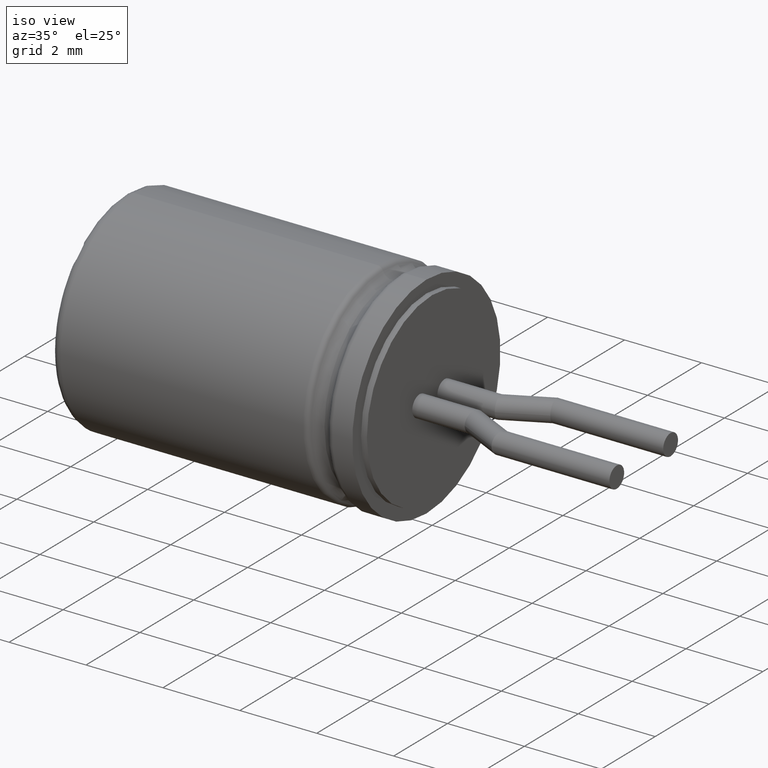
[diagram: clean part render]
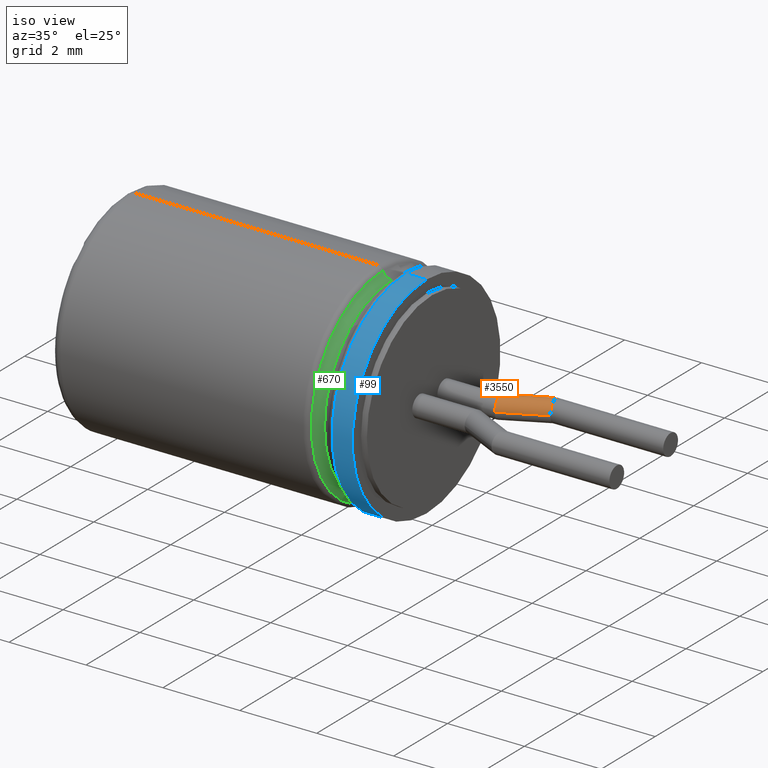
[diagram: same view with three faces highlighted in distinct colors, each labeled with its STEP entity id]
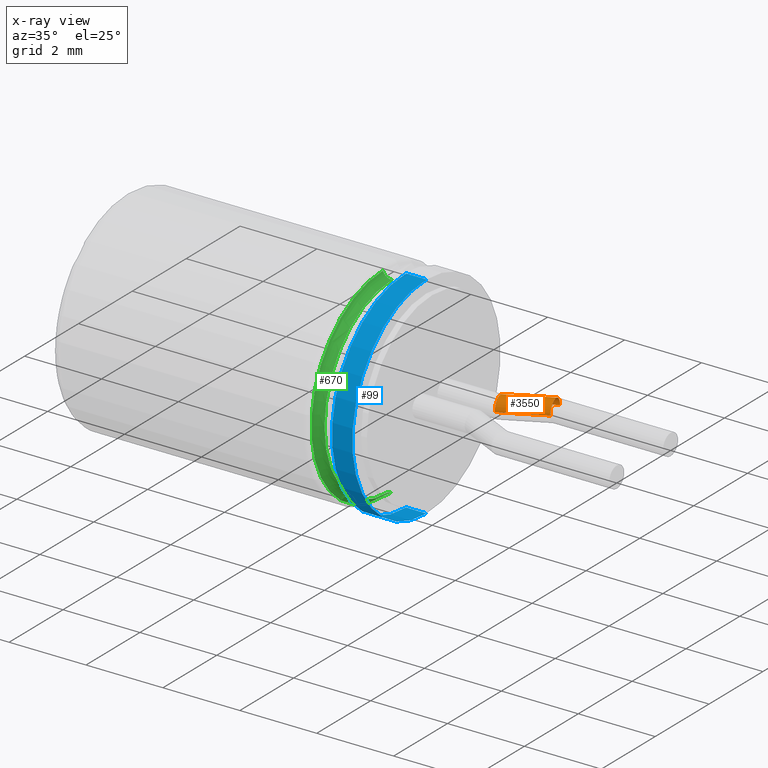
[diagram: x-ray of the same camera — body ghosted, the three highlighted faces saturated]
A machine part, iso view with three faces highlighted in distinct colors.
The next image is the same camera in x-ray (body ghosted, the three faces saturated) — at least one of them is partly hidden behind the body in this view.
Their STEP definitions:

[orange] entity #3550 — the highlighted cylindrical surface (edge-blend (fillet) strip) has radius 0.275 mm, axis along (0.8946, 0.4469, 0).
#248 = CARTESIAN_POINT ( 'NONE',  ( 9.494875275735925200, 0.1903999999999999600, 0.1610912703473989000 ) ) ;
#305 = CARTESIAN_POINT ( 'NONE',  ( 10.50000000000000000, 1.000000000000000000, 0.2750000000000000200 ) ) ;
#306 = CARTESIAN_POINT ( 'NONE',  ( 9.365124724264076100, 0.7404000000000000600, 0.0000000000000000000 ) ) ;
#520 = EDGE_CURVE ( 'NONE', #927, #2744, #4044, .T. ) ;
#561 = VECTOR ( 'NONE', #1484, 1000.000000000000000 ) ;
#601 = CARTESIAN_POINT ( 'NONE',  ( 10.56487527573592500, 0.7249999999999998700, 0.1610912703473988100 ) ) ;
#620 = CARTESIAN_POINT ( 'NONE',  ( 10.46199694333658800, 1.161091270347399000, 0.2750000000000000800 ) ) ;
#847 = CARTESIAN_POINT ( 'NONE',  ( 10.43512472426407600, 1.275000000000000400, 0.0000000000000000000 ) ) ;
#927 = VERTEX_POINT ( 'NONE', #2673 ) ;
#1028 =( BOUNDED_CURVE ( )  B_SPLINE_CURVE ( 3, ( #1531, #601, #2759, #1822 ),
 .UNSPECIFIED., .F., .F. ) 
 B_SPLINE_CURVE_WITH_KNOTS ( ( 4, 4 ),
 ( 3.141592653589793100, 4.712388980384689700 ),
 .UNSPECIFIED. ) 
 CURVE ( )  GEOMETRIC_REPRESENTATION_ITEM ( )  RATIONAL_B_SPLINE_CURVE ( ( 1.000000000000000000, 0.8047378541243649400, 0.8047378541243649400, 1.000000000000000000 ) ) 
 REPRESENTATION_ITEM ( '' )  );
#1054 = VERTEX_POINT ( 'NONE', #306 ) ;
#1096 = EDGE_CURVE ( 'NONE', #1054, #927, #3835, .T. ) ;
#1120 = DIRECTION ( 'NONE',  ( -0.4469460432576659000, 0.8945609171075587000, 0.0000000000000000000 ) ) ;
#1246 = EDGE_CURVE ( 'NONE', #1641, #3207, #1028, .T. ) ;
#1443 = CARTESIAN_POINT ( 'NONE',  ( 9.365124724264076100, 0.7404000000000000600, 0.0000000000000000000 ) ) ;
#1484 = DIRECTION ( 'NONE',  ( 0.8945609171075592500, 0.4469460432576649000, 0.0000000000000000000 ) ) ;
#1485 = CARTESIAN_POINT ( 'NONE',  ( 9.365124724264076100, 0.7403999999999999500, 0.1610912703473988100 ) ) ;
#1531 = CARTESIAN_POINT ( 'NONE',  ( 10.56487527573592500, 0.7249999999999998700, 3.367778697655221300E-017 ) ) ;
#1641 = VERTEX_POINT ( 'NONE', #1698 ) ;
#1650 = LINE ( 'NONE', #3045, #561 ) ;
#1698 = CARTESIAN_POINT ( 'NONE',  ( 10.56487527573592500, 0.7249999999999998700, 3.367778697655221300E-017 ) ) ;
#1740 = ORIENTED_EDGE ( 'NONE', *, *, #1969, .T. ) ;
#1763 = VECTOR ( 'NONE', #2826, 1000.000000000000000 ) ;
#1822 = CARTESIAN_POINT ( 'NONE',  ( 10.50000000000000000, 1.000000000000000000, 0.2750000000000000200 ) ) ;
#1870 = CARTESIAN_POINT ( 'NONE',  ( 9.552910161895859200, 0.2193957477954211200, 3.367778697655221300E-017 ) ) ;
#1874 = CARTESIAN_POINT ( 'NONE',  ( 9.430000000000001500, 0.4653999999999999200, 0.2750000000000000200 ) ) ;
#1969 = EDGE_CURVE ( 'NONE', #2744, #1641, #2750, .T. ) ;
#1979 = ORIENTED_EDGE ( 'NONE', *, *, #1246, .T. ) ;
#1987 = EDGE_LOOP ( 'NONE', ( #2920, #2569, #1740, #1979, #3666, #3060 ) ) ;
#2054 = CARTESIAN_POINT ( 'NONE',  ( 9.430000000000001500, 0.4653999999999999200, 0.2750000000000000200 ) ) ;
#2189 = CARTESIAN_POINT ( 'NONE',  ( 9.468003056663411200, 0.3043087296526010300, 0.2750000000000000200 ) ) ;
#2380 = VERTEX_POINT ( 'NONE', #847 ) ;
#2460 = CARTESIAN_POINT ( 'NONE',  ( 9.494875275735925200, 0.1903999999999997400, 3.367778697655221300E-017 ) ) ;
#2569 = ORIENTED_EDGE ( 'NONE', *, *, #520, .T. ) ;
#2597 = CARTESIAN_POINT ( 'NONE',  ( 9.430000000000001500, 0.4653999999999999200, 0.0000000000000000000 ) ) ;
#2600 =( BOUNDED_CURVE ( )  B_SPLINE_CURVE ( 3, ( #305, #620, #4078, #4070 ),
 .UNSPECIFIED., .F., .T. ) 
 B_SPLINE_CURVE_WITH_KNOTS ( ( 4, 4 ),
 ( 4.712388980384689700, 6.283185307179586200 ),
 .UNSPECIFIED. ) 
 CURVE ( )  GEOMETRIC_REPRESENTATION_ITEM ( )  RATIONAL_B_SPLINE_CURVE ( ( 1.000000000000000000, 0.8047378541243649400, 0.8047378541243649400, 1.000000000000000000 ) ) 
 REPRESENTATION_ITEM ( '' )  );
#2646 = EDGE_CURVE ( 'NONE', #1054, #2380, #1650, .T. ) ;
#2673 = CARTESIAN_POINT ( 'NONE',  ( 9.430000000000001500, 0.4653999999999999200, 0.2750000000000000200 ) ) ;
#2744 = VERTEX_POINT ( 'NONE', #2808 ) ;
#2748 = CARTESIAN_POINT ( 'NONE',  ( 9.391996943336590000, 0.6264912703473989300, 0.2750000000000000200 ) ) ;
#2750 = LINE ( 'NONE', #1870, #1763 ) ;
#2759 = CARTESIAN_POINT ( 'NONE',  ( 10.53800305666341200, 0.8389087296526008800, 0.2749999999999999700 ) ) ;
#2808 = CARTESIAN_POINT ( 'NONE',  ( 9.494875275735925200, 0.1903999999999997400, 3.367778697655221300E-017 ) ) ;
#2826 = DIRECTION ( 'NONE',  ( 0.8945609171075592500, 0.4469460432576649000, 0.0000000000000000000 ) ) ;
#2908 = DIRECTION ( 'NONE',  ( 0.8945609171075592500, 0.4469460432576649000, 0.0000000000000000000 ) ) ;
#2920 = ORIENTED_EDGE ( 'NONE', *, *, #1096, .T. ) ;
#2956 = FACE_OUTER_BOUND ( 'NONE', #1987, .T. ) ;
#3045 = CARTESIAN_POINT ( 'NONE',  ( 9.307089838104142000, 0.7114042522045787000, 0.0000000000000000000 ) ) ;
#3060 = ORIENTED_EDGE ( 'NONE', *, *, #2646, .F. ) ;
#3207 = VERTEX_POINT ( 'NONE', #3727 ) ;
#3550 = ADVANCED_FACE ( 'NONE', ( #2956 ), #4090, .T. ) ;
#3666 = ORIENTED_EDGE ( 'NONE', *, *, #3855, .T. ) ;
#3727 = CARTESIAN_POINT ( 'NONE',  ( 10.50000000000000000, 1.000000000000000000, 0.2750000000000000200 ) ) ;
#3835 =( BOUNDED_CURVE ( )  B_SPLINE_CURVE ( 3, ( #1443, #1485, #2748, #2054 ),
 .UNSPECIFIED., .F., .F. ) 
 B_SPLINE_CURVE_WITH_KNOTS ( ( 4, 4 ),
 ( 0.0000000000000000000, 1.570796326794896600 ),
 .UNSPECIFIED. ) 
 CURVE ( )  GEOMETRIC_REPRESENTATION_ITEM ( )  RATIONAL_B_SPLINE_CURVE ( ( 1.000000000000000000, 0.8047378541243649400, 0.8047378541243649400, 1.000000000000000000 ) ) 
 REPRESENTATION_ITEM ( '' )  );
#3855 = EDGE_CURVE ( 'NONE', #3207, #2380, #2600, .T. ) ;
#3947 = AXIS2_PLACEMENT_3D ( 'NONE', #2597, #2908, #1120 ) ;
#4044 =( BOUNDED_CURVE ( )  B_SPLINE_CURVE ( 3, ( #1874, #2189, #248, #2460 ),
 .UNSPECIFIED., .F., .F. ) 
 B_SPLINE_CURVE_WITH_KNOTS ( ( 4, 4 ),
 ( 1.570796326794896600, 3.141592653589793100 ),
 .UNSPECIFIED. ) 
 CURVE ( )  GEOMETRIC_REPRESENTATION_ITEM ( )  RATIONAL_B_SPLINE_CURVE ( ( 1.000000000000000000, 0.8047378541243649400, 0.8047378541243649400, 1.000000000000000000 ) ) 
 REPRESENTATION_ITEM ( '' )  );
#4070 = CARTESIAN_POINT ( 'NONE',  ( 10.43512472426407600, 1.275000000000000400, 0.0000000000000000000 ) ) ;
#4078 = CARTESIAN_POINT ( 'NONE',  ( 10.43512472426407500, 1.275000000000000100, 0.1610912703473988100 ) ) ;
#4090 = CYLINDRICAL_SURFACE ( 'NONE', #3947, 0.2750000000000001900 ) ;

[blue] entity #99 — the highlighted cylindrical surface (partial cylindrical patch) has radius 2.75 mm, axis along (-1, -0, -0).
#64 = CARTESIAN_POINT ( 'NONE',  ( 7.320809924354780800, 0.0000000000000000000, 2.750000000000000000 ) ) ;
#99 = ADVANCED_FACE ( 'NONE', ( #2012 ), #3355, .T. ) ;
#155 = DIRECTION ( 'NONE',  ( 0.0000000000000000000, 0.0000000000000000000, 1.000000000000000000 ) ) ;
#327 = CARTESIAN_POINT ( 'NONE',  ( 7.849999999999999600, 3.367778697655221000E-016, -2.750000000000000000 ) ) ;
#416 = DIRECTION ( 'NONE',  ( 0.0000000000000000000, 0.0000000000000000000, 1.000000000000000000 ) ) ;
#417 = AXIS2_PLACEMENT_3D ( 'NONE', #3819, #3202, #416 ) ;
#552 = CARTESIAN_POINT ( 'NONE',  ( 7.849999999999999600, 0.0000000000000000000, 2.750000000000000000 ) ) ;
#564 = AXIS2_PLACEMENT_3D ( 'NONE', #780, #1093, #155 ) ;
#632 = ORIENTED_EDGE ( 'NONE', *, *, #1396, .F. ) ;
#780 = CARTESIAN_POINT ( 'NONE',  ( 7.320809924354780800, 0.0000000000000000000, 0.0000000000000000000 ) ) ;
#868 = AXIS2_PLACEMENT_3D ( 'NONE', #2758, #2443, #3670 ) ;
#1093 = DIRECTION ( 'NONE',  ( 1.000000000000000000, -0.0000000000000000000, -0.0000000000000000000 ) ) ;
#1127 = VERTEX_POINT ( 'NONE', #1756 ) ;
#1235 = VERTEX_POINT ( 'NONE', #3038 ) ;
#1396 = EDGE_CURVE ( 'NONE', #1235, #1496, #3593, .T. ) ;
#1496 = VERTEX_POINT ( 'NONE', #1665 ) ;
#1584 = DIRECTION ( 'NONE',  ( -1.000000000000000000, -0.0000000000000000000, -0.0000000000000000000 ) ) ;
#1665 = CARTESIAN_POINT ( 'NONE',  ( 7.320809924354780800, 3.367778697655221000E-016, -2.750000000000000000 ) ) ;
#1670 = VECTOR ( 'NONE', #3093, 1000.000000000000000 ) ;
#1686 = ORIENTED_EDGE ( 'NONE', *, *, #1716, .T. ) ;
#1716 = EDGE_CURVE ( 'NONE', #1127, #2075, #3737, .T. ) ;
#1756 = CARTESIAN_POINT ( 'NONE',  ( 7.849999999999999600, 0.0000000000000000000, 2.750000000000000000 ) ) ;
#1935 = ORIENTED_EDGE ( 'NONE', *, *, #3699, .F. ) ;
#2012 = FACE_OUTER_BOUND ( 'NONE', #3409, .T. ) ;
#2075 = VERTEX_POINT ( 'NONE', #64 ) ;
#2109 = VECTOR ( 'NONE', #1584, 1000.000000000000000 ) ;
#2120 = CIRCLE ( 'NONE', #868, 2.750000000000000000 ) ;
#2443 = DIRECTION ( 'NONE',  ( 1.000000000000000000, 0.0000000000000000000, 0.0000000000000000000 ) ) ;
#2525 = EDGE_CURVE ( 'NONE', #2075, #1496, #2743, .T. ) ;
#2743 = CIRCLE ( 'NONE', #564, 2.750000000000000000 ) ;
#2758 = CARTESIAN_POINT ( 'NONE',  ( 7.849999999999999600, 0.0000000000000000000, 0.0000000000000000000 ) ) ;
#3038 = CARTESIAN_POINT ( 'NONE',  ( 7.849999999999999600, 3.367778697655221000E-016, -2.750000000000000000 ) ) ;
#3093 = DIRECTION ( 'NONE',  ( -1.000000000000000000, -0.0000000000000000000, -0.0000000000000000000 ) ) ;
#3202 = DIRECTION ( 'NONE',  ( -1.000000000000000000, -0.0000000000000000000, -0.0000000000000000000 ) ) ;
#3355 = CYLINDRICAL_SURFACE ( 'NONE', #417, 2.750000000000000000 ) ;
#3409 = EDGE_LOOP ( 'NONE', ( #632, #1935, #1686, #3802 ) ) ;
#3593 = LINE ( 'NONE', #327, #2109 ) ;
#3670 = DIRECTION ( 'NONE',  ( 0.0000000000000000000, 0.0000000000000000000, -1.000000000000000000 ) ) ;
#3699 = EDGE_CURVE ( 'NONE', #1127, #1235, #2120, .T. ) ;
#3737 = LINE ( 'NONE', #552, #1670 ) ;
#3802 = ORIENTED_EDGE ( 'NONE', *, *, #2525, .T. ) ;
#3819 = CARTESIAN_POINT ( 'NONE',  ( 7.849999999999999600, 0.0000000000000000000, 0.0000000000000000000 ) ) ;

[green] entity #670 — the highlighted toroidal blend (fillet) surface has major radius 2.75 mm and minor (blend) radius 0.25 mm.
#10 = CARTESIAN_POINT ( 'NONE',  ( 6.949999999999997500, 0.0000000000000000000, 0.0000000000000000000 ) ) ;
#58 = CARTESIAN_POINT ( 'NONE',  ( 6.949999999999997500, 3.061616997868382600E-016, 2.499999999999999600 ) ) ;
#88 = CIRCLE ( 'NONE', #3507, 0.2500000000000002200 ) ;
#101 = VERTEX_POINT ( 'NONE', #58 ) ;
#203 = DIRECTION ( 'NONE',  ( 0.0000000000000000000, 0.0000000000000000000, -1.000000000000000000 ) ) ;
#369 = FACE_OUTER_BOUND ( 'NONE', #883, .T. ) ;
#431 = CARTESIAN_POINT ( 'NONE',  ( 6.718243797278253400, 0.0000000000000000000, -2.656250000000004900 ) ) ;
#435 = EDGE_CURVE ( 'NONE', #101, #788, #88, .T. ) ;
#436 = DIRECTION ( 'NONE',  ( 1.000000000000000000, -0.0000000000000000000, -0.0000000000000000000 ) ) ;
#534 = DIRECTION ( 'NONE',  ( 0.0000000000000000000, 0.0000000000000000000, -1.000000000000000000 ) ) ;
#650 = CARTESIAN_POINT ( 'NONE',  ( 6.718243797278253400, 3.252968060235163200E-016, 2.656250000000004900 ) ) ;
#670 = ADVANCED_FACE ( 'NONE', ( #369 ), #3478, .F. ) ;
#788 = VERTEX_POINT ( 'NONE', #650 ) ;
#883 = EDGE_LOOP ( 'NONE', ( #2084, #3613, #1143, #3958 ) ) ;
#1074 = CIRCLE ( 'NONE', #3070, 2.656249999999998200 ) ;
#1119 = EDGE_CURVE ( 'NONE', #788, #4063, #1074, .T. ) ;
#1143 = ORIENTED_EDGE ( 'NONE', *, *, #1119, .T. ) ;
#1183 = DIRECTION ( 'NONE',  ( 0.0000000000000000000, 1.224646799147353500E-016, 1.000000000000000000 ) ) ;
#1231 = CARTESIAN_POINT ( 'NONE',  ( 6.949999999999997500, 3.367778697655221000E-016, 2.750000000000000000 ) ) ;
#1403 = AXIS2_PLACEMENT_3D ( 'NONE', #10, #3170, #3499 ) ;
#1471 = DIRECTION ( 'NONE',  ( 1.000000000000000000, 0.0000000000000000000, 0.0000000000000000000 ) ) ;
#1492 = VERTEX_POINT ( 'NONE', #1947 ) ;
#1562 = AXIS2_PLACEMENT_3D ( 'NONE', #3697, #2463, #534 ) ;
#1591 = CIRCLE ( 'NONE', #2473, 2.499999999999999600 ) ;
#1947 = CARTESIAN_POINT ( 'NONE',  ( 6.949999999999997500, 0.0000000000000000000, -2.499999999999999600 ) ) ;
#2084 = ORIENTED_EDGE ( 'NONE', *, *, #3013, .F. ) ;
#2154 = CIRCLE ( 'NONE', #1562, 0.2500000000000002200 ) ;
#2324 = CARTESIAN_POINT ( 'NONE',  ( 6.949999999999997500, 0.0000000000000000000, 0.0000000000000000000 ) ) ;
#2463 = DIRECTION ( 'NONE',  ( -0.0000000000000000000, -1.000000000000000000, -0.0000000000000000000 ) ) ;
#2473 = AXIS2_PLACEMENT_3D ( 'NONE', #2324, #436, #2907 ) ;
#2907 = DIRECTION ( 'NONE',  ( 0.0000000000000000000, 0.0000000000000000000, -1.000000000000000000 ) ) ;
#3013 = EDGE_CURVE ( 'NONE', #101, #1492, #1591, .T. ) ;
#3070 = AXIS2_PLACEMENT_3D ( 'NONE', #3341, #1471, #203 ) ;
#3108 = DIRECTION ( 'NONE',  ( 0.0000000000000000000, 1.000000000000000000, -1.224646799147353200E-016 ) ) ;
#3170 = DIRECTION ( 'NONE',  ( 1.000000000000000000, -0.0000000000000000000, -0.0000000000000000000 ) ) ;
#3341 = CARTESIAN_POINT ( 'NONE',  ( 6.718243797278253400, 0.0000000000000000000, 0.0000000000000000000 ) ) ;
#3478 = TOROIDAL_SURFACE ( 'NONE', #1403, 2.750000000000000000, 0.2500000000000002200 ) ;
#3499 = DIRECTION ( 'NONE',  ( 0.0000000000000000000, 0.0000000000000000000, -1.000000000000000000 ) ) ;
#3507 = AXIS2_PLACEMENT_3D ( 'NONE', #1231, #3108, #1183 ) ;
#3613 = ORIENTED_EDGE ( 'NONE', *, *, #435, .T. ) ;
#3697 = CARTESIAN_POINT ( 'NONE',  ( 6.949999999999997500, 0.0000000000000000000, -2.750000000000000000 ) ) ;
#3763 = EDGE_CURVE ( 'NONE', #1492, #4063, #2154, .T. ) ;
#3958 = ORIENTED_EDGE ( 'NONE', *, *, #3763, .F. ) ;
#4063 = VERTEX_POINT ( 'NONE', #431 ) ;